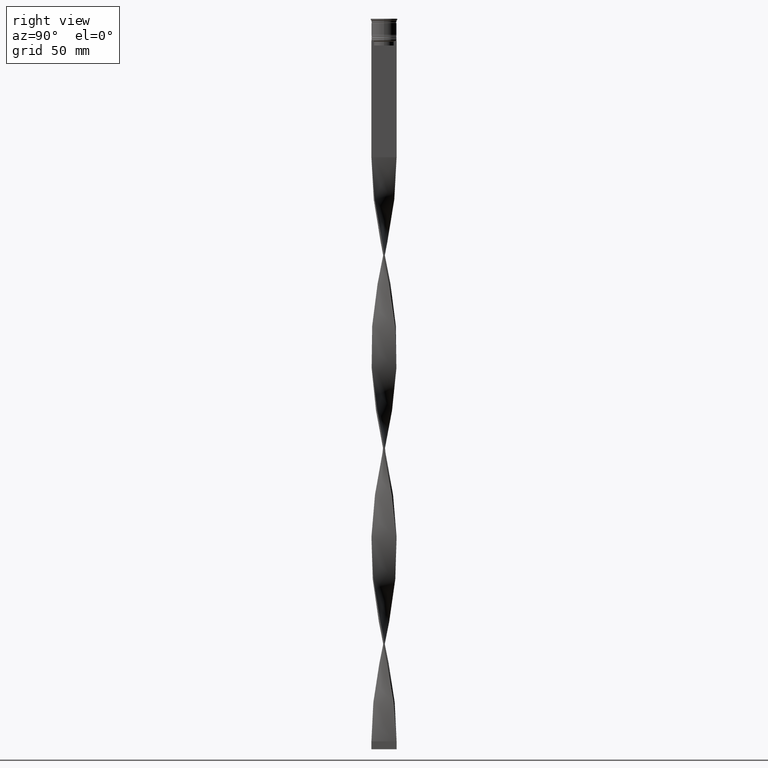
[diagram: clean part render]
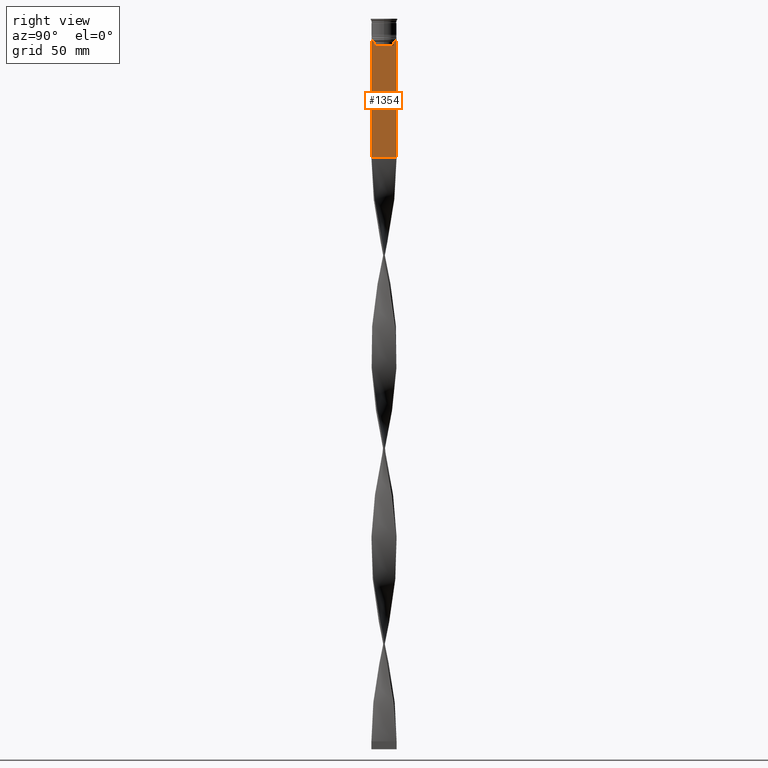
[diagram: same view with one face highlighted and labeled with its STEP entity id]
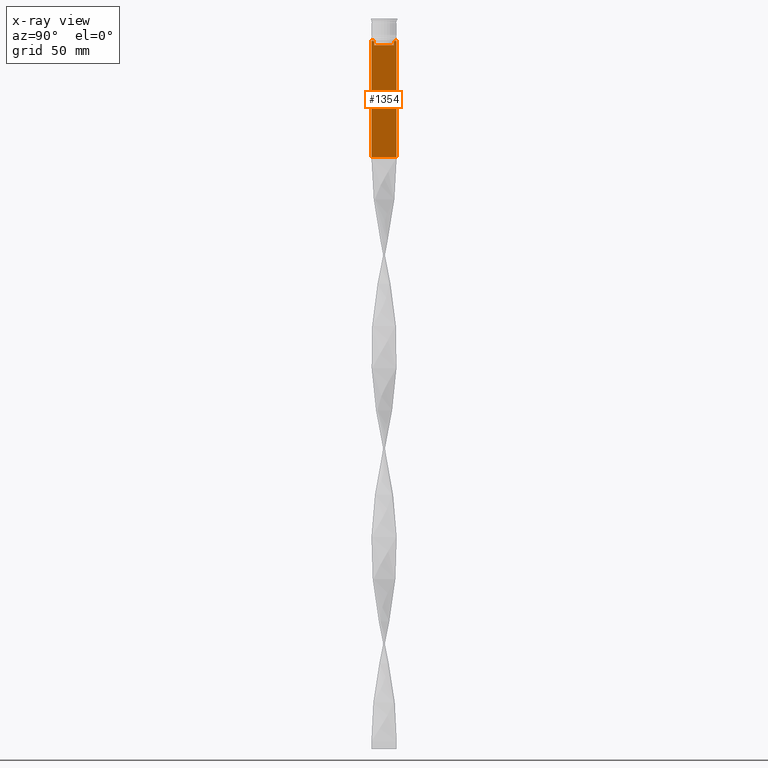
[diagram: x-ray of the same camera — body ghosted, the highlighted face saturated]
A machine part, right view. The second image highlights one B-rep face of the part: STEP entity #1354.
The next image is the same camera in x-ray: the body ghosted, the highlighted face saturated — about 0% of this face is hidden behind the body in this view.
In plain terms, the highlighted planar face has unit normal (-1, 0, 0).
Its self-contained STEP definition (entity closure, byte-faithful):
#52 = VECTOR ( 'NONE', #154, 1000.000000000000000 ) ;
#154 = DIRECTION ( 'NONE',  ( 0.000000000000000000, -1.000000000000000000, 0.000000000000000000 ) ) ;
#167 = PLANE ( 'NONE',  #4179 ) ;
#212 = CARTESIAN_POINT ( 'NONE',  ( 0.5000000000000001110, -7.884161337770806632, -14.00000000000000178 ) ) ;
#234 = CARTESIAN_POINT ( 'NONE',  ( 0.5000000000000001110, 6.881860213634098500, -14.00000000000000178 ) ) ;
#347 = DIRECTION ( 'NONE',  ( 0.000000000000000000, 1.000000000000000000, 0.000000000000000000 ) ) ;
#369 = VERTEX_POINT ( 'NONE', #212 ) ;
#431 = EDGE_CURVE ( 'NONE', #369, #3085, #3764, .T. ) ;
#465 = CARTESIAN_POINT ( 'NONE',  ( 0.5000000000000001110, 7.999999999999996447, -88.00000000000000000 ) ) ;
#475 = CARTESIAN_POINT ( 'NONE',  ( 0.5000000000000001110, 7.999999999999996447, 2.031219541881394530 ) ) ;
#487 = VECTOR ( 'NONE', #1474, 1000.000000000000000 ) ;
#488 = CARTESIAN_POINT ( 'NONE',  ( 0.5000000000000001110, -8.000000000000003553, -14.00000000000000178 ) ) ;
#511 = DIRECTION ( 'NONE',  ( -0.000000000000000000, -0.000000000000000000, 1.000000000000000000 ) ) ;
#537 = CARTESIAN_POINT ( 'NONE',  ( 0.5000000000000001110, -8.000000000000003553, -88.00000000000000000 ) ) ;
#542 = VERTEX_POINT ( 'NONE', #1549 ) ;
#548 = CARTESIAN_POINT ( 'NONE',  ( 0.5000000000000001110, 6.380438856379708312, 0.000000000000000000 ) ) ;
#650 = ORIENTED_EDGE ( 'NONE', *, *, #1949, .T. ) ;
#767 = ORIENTED_EDGE ( 'NONE', *, *, #3512, .T. ) ;
#877 = EDGE_CURVE ( 'NONE', #2477, #542, #2295, .T. ) ;
#982 = VECTOR ( 'NONE', #1449, 1000.000000000000000 ) ;
#992 = EDGE_CURVE ( 'NONE', #1746, #2439, #3334, .T. ) ;
#1072 = CARTESIAN_POINT ( 'NONE',  ( 0.5000000000000001110, 6.380438856379708312, -17.00000000000000000 ) ) ;
#1109 = CARTESIAN_POINT ( 'NONE',  ( 0.5000000000000001110, -6.881860213634098500, -14.00000000000000178 ) ) ;
#1141 = EDGE_CURVE ( 'NONE', #4139, #3903, #2489, .T. ) ;
#1195 = DIRECTION ( 'NONE',  ( 0.000000000000000000, -1.000000000000000000, 0.000000000000000000 ) ) ;
#1228 = LINE ( 'NONE', #488, #52 ) ;
#1235 = ORIENTED_EDGE ( 'NONE', *, *, #1386, .F. ) ;
#1260 = CARTESIAN_POINT ( 'NONE',  ( 0.5000000000000001110, 6.380438856379708312, -14.50000000000000000 ) ) ;
#1296 = CARTESIAN_POINT ( 'NONE',  ( 0.5000000000000001110, 6.881860213634098500, -14.00000000000000178 ) ) ;
#1316 = VECTOR ( 'NONE', #1994, 1000.000000000000000 ) ;
#1344 = ORIENTED_EDGE ( 'NONE', *, *, #992, .T. ) ;
#1354 = ADVANCED_FACE ( 'NONE', ( #4209 ), #167, .F. ) ;
#1386 = EDGE_CURVE ( 'NONE', #3099, #2439, #2492, .T. ) ;
#1449 = DIRECTION ( 'NONE',  ( 0.000000000000000000, 0.000000000000000000, -1.000000000000000000 ) ) ;
#1474 = DIRECTION ( 'NONE',  ( 0.000000000000000000, 0.000000000000000000, -1.000000000000000000 ) ) ;
#1499 = DIRECTION ( 'NONE',  ( 0.000000000000000000, 0.000000000000000000, 1.000000000000000000 ) ) ;
#1510 = CARTESIAN_POINT ( 'NONE',  ( 0.5000000000000001110, -6.380438856379708312, 0.000000000000000000 ) ) ;
#1512 = B_SPLINE_CURVE_WITH_KNOTS ( 'NONE', 3,
 ( #234, #4226, #3309, #1260 ),
 .UNSPECIFIED., .F., .F.,
 ( 4, 4 ),
 ( 0.01172465562756038263, 0.01243276816391822651 ),
 .UNSPECIFIED. ) ;
#1517 = EDGE_CURVE ( 'NONE', #3903, #369, #3795, .T. ) ;
#1549 = CARTESIAN_POINT ( 'NONE',  ( 0.5000000000000001110, -6.380438856379708312, -17.00000000000000000 ) ) ;
#1562 = ORIENTED_EDGE ( 'NONE', *, *, #2275, .T. ) ;
#1591 = VERTEX_POINT ( 'NONE', #3930 ) ;
#1613 = VECTOR ( 'NONE', #511, 1000.000000000000000 ) ;
#1746 = VERTEX_POINT ( 'NONE', #537 ) ;
#1809 = LINE ( 'NONE', #3503, #487 ) ;
#1934 = VERTEX_POINT ( 'NONE', #1296 ) ;
#1944 = VECTOR ( 'NONE', #2833, 1000.000000000000000 ) ;
#1945 = VECTOR ( 'NONE', #1195, 1000.000000000000000 ) ;
#1949 = EDGE_CURVE ( 'NONE', #1934, #2316, #1512, .T. ) ;
#1994 = DIRECTION ( 'NONE',  ( 0.000000000000000000, -1.000000000000000000, 0.000000000000000000 ) ) ;
#2066 = ORIENTED_EDGE ( 'NONE', *, *, #431, .T. ) ;
#2071 = ORIENTED_EDGE ( 'NONE', *, *, #2736, .T. ) ;
#2158 = DIRECTION ( 'NONE',  ( -1.000000000000000000, 0.000000000000000000, 0.000000000000000000 ) ) ;
#2238 = VECTOR ( 'NONE', #3180, 1000.000000000000000 ) ;
#2275 = EDGE_CURVE ( 'NONE', #542, #4139, #2460, .T. ) ;
#2295 = LINE ( 'NONE', #2904, #2363 ) ;
#2316 = VERTEX_POINT ( 'NONE', #3175 ) ;
#2363 = VECTOR ( 'NONE', #3989, 1000.000000000000000 ) ;
#2411 = CARTESIAN_POINT ( 'NONE',  ( 0.5000000000000001110, -6.380438856379708312, -14.50000000000000000 ) ) ;
#2413 = ORIENTED_EDGE ( 'NONE', *, *, #2686, .T. ) ;
#2439 = VERTEX_POINT ( 'NONE', #465 ) ;
#2460 = LINE ( 'NONE', #1510, #1613 ) ;
#2477 = VERTEX_POINT ( 'NONE', #1072 ) ;
#2488 = CARTESIAN_POINT ( 'NONE',  ( 0.5000000000000001110, -8.000000000000003553, -14.00000000000000178 ) ) ;
#2489 = B_SPLINE_CURVE_WITH_KNOTS ( 'NONE', 3,
 ( #2411, #4028, #4090, #1109 ),
 .UNSPECIFIED., .F., .F.,
 ( 4, 4 ),
 ( 0.02996184199614751464, 0.03067452609193705923 ),
 .UNSPECIFIED. ) ;
#2492 = LINE ( 'NONE', #475, #982 ) ;
#2596 = LINE ( 'NONE', #2637, #1316 ) ;
#2637 = CARTESIAN_POINT ( 'NONE',  ( 0.5000000000000001110, -8.000000000000003553, -14.00000000000000178 ) ) ;
#2686 = EDGE_CURVE ( 'NONE', #2316, #2477, #3533, .T. ) ;
#2736 = EDGE_CURVE ( 'NONE', #3099, #1591, #1228, .T. ) ;
#2833 = DIRECTION ( 'NONE',  ( 0.000000000000000000, 0.000000000000000000, -1.000000000000000000 ) ) ;
#2842 = EDGE_LOOP ( 'NONE', ( #767, #650, #2413, #4313, #1562, #4220, #4279, #2066, #4119, #1344, #1235, #2071 ) ) ;
#2904 = CARTESIAN_POINT ( 'NONE',  ( 0.5000000000000001110, 6.399999999999999467, -17.00000000000000000 ) ) ;
#3085 = VERTEX_POINT ( 'NONE', #4330 ) ;
#3099 = VERTEX_POINT ( 'NONE', #3144 ) ;
#3144 = CARTESIAN_POINT ( 'NONE',  ( 0.5000000000000001110, 7.999999999999996447, -14.00000000000000178 ) ) ;
#3160 = CARTESIAN_POINT ( 'NONE',  ( 0.5000000000000001110, -8.000000000000003553, -14.00000000000000178 ) ) ;
#3175 = CARTESIAN_POINT ( 'NONE',  ( 0.5000000000000001110, 6.380438856379708312, -14.50000000000000000 ) ) ;
#3180 = DIRECTION ( 'NONE',  ( 0.000000000000000000, -1.000000000000000000, 0.000000000000000000 ) ) ;
#3205 = CARTESIAN_POINT ( 'NONE',  ( 0.5000000000000001110, -8.000000000000003553, 2.031219541881394530 ) ) ;
#3207 = EDGE_CURVE ( 'NONE', #3085, #1746, #1809, .T. ) ;
#3272 = VECTOR ( 'NONE', #347, 1000.000000000000000 ) ;
#3309 = CARTESIAN_POINT ( 'NONE',  ( 0.5000000000000001110, 6.547597841304911626, -14.33335192459222718 ) ) ;
#3334 = LINE ( 'NONE', #3924, #3272 ) ;
#3503 = CARTESIAN_POINT ( 'NONE',  ( 0.5000000000000001110, -8.000000000000003553, 2.031219541881394530 ) ) ;
#3512 = EDGE_CURVE ( 'NONE', #1591, #1934, #2596, .T. ) ;
#3533 = LINE ( 'NONE', #548, #1944 ) ;
#3560 = CARTESIAN_POINT ( 'NONE',  ( 0.5000000000000001110, -6.881860213634098500, -14.00000000000000178 ) ) ;
#3619 = CARTESIAN_POINT ( 'NONE',  ( 0.5000000000000001110, -6.380438856379708312, -14.50000000000000000 ) ) ;
#3764 = LINE ( 'NONE', #2488, #1945 ) ;
#3795 = LINE ( 'NONE', #3160, #2238 ) ;
#3903 = VERTEX_POINT ( 'NONE', #3560 ) ;
#3924 = CARTESIAN_POINT ( 'NONE',  ( 0.5000000000000001110, -8.000000000000003553, -88.00000000000000000 ) ) ;
#3930 = CARTESIAN_POINT ( 'NONE',  ( 0.5000000000000001110, 7.884161337770806632, -14.00000000000000178 ) ) ;
#3989 = DIRECTION ( 'NONE',  ( 0.000000000000000000, -1.000000000000000000, 0.000000000000000000 ) ) ;
#4028 = CARTESIAN_POINT ( 'NONE',  ( 0.5000000000000001110, -6.547597841511247019, -14.33335192438652150 ) ) ;
#4090 = CARTESIAN_POINT ( 'NONE',  ( 0.5000000000000001110, -6.714736947305993908, -14.16668390685738821 ) ) ;
#4119 = ORIENTED_EDGE ( 'NONE', *, *, #3207, .T. ) ;
#4139 = VERTEX_POINT ( 'NONE', #3619 ) ;
#4179 = AXIS2_PLACEMENT_3D ( 'NONE', #3205, #2158, #1499 ) ;
#4209 = FACE_OUTER_BOUND ( 'NONE', #2842, .T. ) ;
#4220 = ORIENTED_EDGE ( 'NONE', *, *, #1141, .T. ) ;
#4226 = CARTESIAN_POINT ( 'NONE',  ( 0.5000000000000001110, 6.714736947114692711, -14.16668390704818847 ) ) ;
#4279 = ORIENTED_EDGE ( 'NONE', *, *, #1517, .T. ) ;
#4313 = ORIENTED_EDGE ( 'NONE', *, *, #877, .T. ) ;
#4330 = CARTESIAN_POINT ( 'NONE',  ( 0.5000000000000001110, -8.000000000000003553, -14.00000000000000178 ) ) ;